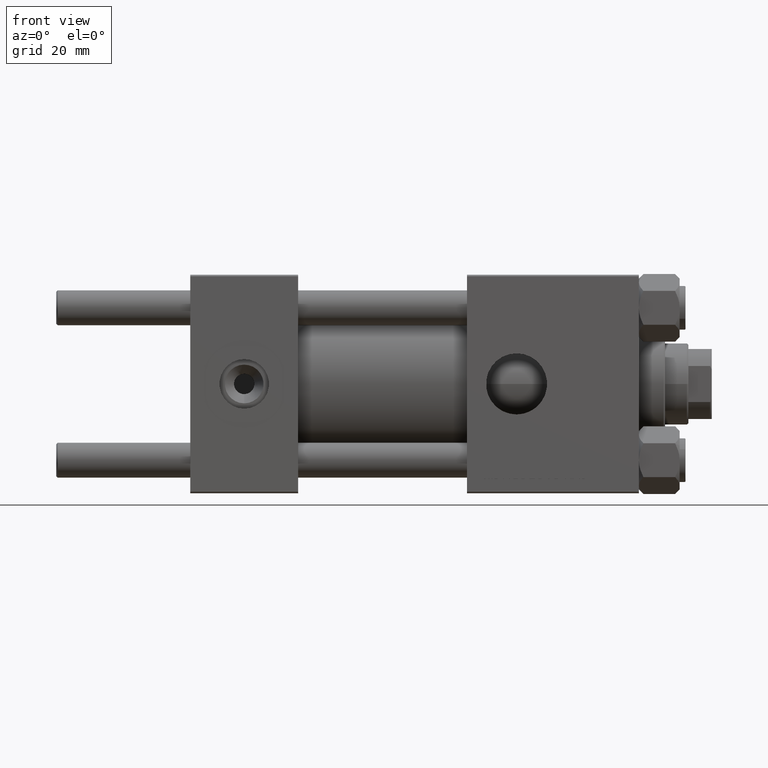
[diagram: clean part render]
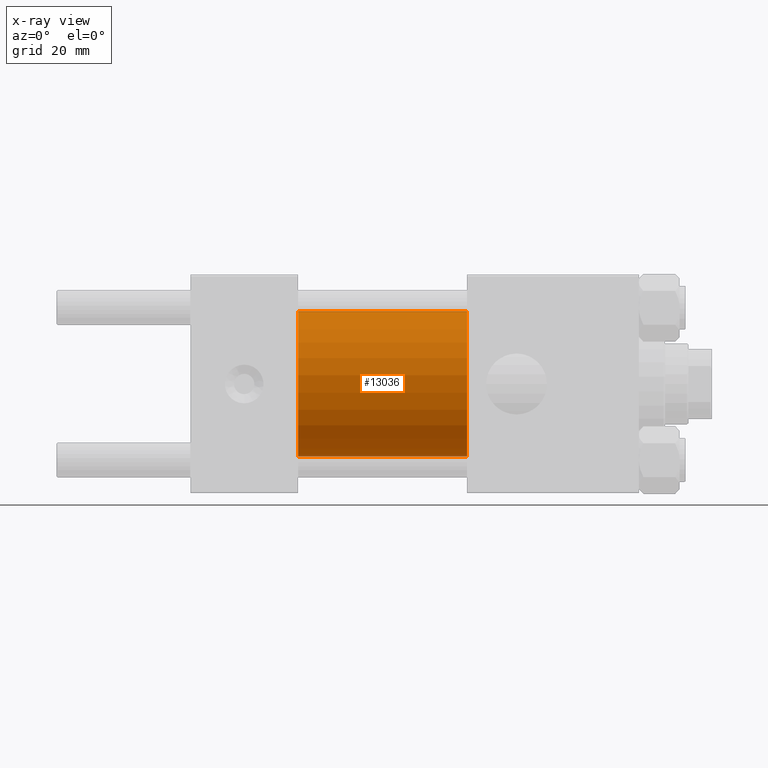
[diagram: x-ray — body ghosted, one internal face saturated and labeled with its STEP entity id]
A machine part, front view, then the same camera in x-ray: the body is ghosted and one INTERNAL B-rep face — a face not visible from any outside direction — is saturated and labeled: STEP entity #13036.
In plain terms, the highlighted cylindrical surface (partial cylindrical patch) has radius 25 mm, axis along (-1, -0, -0).
Its self-contained STEP definition (entity closure, byte-faithful):
#4200 = DIRECTION ( 'NONE',  ( 0.000000000000000000, 0.000000000000000000, 1.000000000000000000 ) ) ;
#9111 = ORIENTED_EDGE ( 'NONE', *, *, #16241, .T. ) ;
#12316 = CARTESIAN_POINT ( 'NONE',  ( 95.00000000000000000, 0.000000000000000000, 25.00000000000000000 ) ) ;
#12723 = DIRECTION ( 'NONE',  ( 0.000000000000000000, 0.000000000000000000, -1.000000000000000000 ) ) ;
#13036 = ADVANCED_FACE ( 'NONE', ( #40164 ), #21444, .F. ) ;
#13357 = DIRECTION ( 'NONE',  ( 1.000000000000000000, 0.000000000000000000, 0.000000000000000000 ) ) ;
#13746 = DIRECTION ( 'NONE',  ( 1.000000000000000000, 0.000000000000000000, 0.000000000000000000 ) ) ;
#16241 = EDGE_CURVE ( 'NONE', #38614, #47656, #29876, .T. ) ;
#17797 = EDGE_CURVE ( 'NONE', #30046, #34413, #41703, .T. ) ;
#19150 = CARTESIAN_POINT ( 'NONE',  ( 95.00000000000000000, 3.061616997868382254E-15, -25.00000000000000000 ) ) ;
#19306 = CARTESIAN_POINT ( 'NONE',  ( 37.00000000000000000, 0.000000000000000000, 25.00000000000000000 ) ) ;
#19965 = CARTESIAN_POINT ( 'NONE',  ( 95.00000000000000000, 0.000000000000000000, 0.000000000000000000 ) ) ;
#21368 = CARTESIAN_POINT ( 'NONE',  ( 37.00000000000000000, 0.000000000000000000, 0.000000000000000000 ) ) ;
#21444 = CYLINDRICAL_SURFACE ( 'NONE', #34779, 25.00000000000000000 ) ;
#25180 = EDGE_LOOP ( 'NONE', ( #9111, #46758, #28648, #28041 ) ) ;
#27806 = VECTOR ( 'NONE', #28220, 1000.000000000000000 ) ;
#28041 = ORIENTED_EDGE ( 'NONE', *, *, #30184, .F. ) ;
#28220 = DIRECTION ( 'NONE',  ( -1.000000000000000000, -0.000000000000000000, -0.000000000000000000 ) ) ;
#28648 = ORIENTED_EDGE ( 'NONE', *, *, #17797, .F. ) ;
#29876 = CIRCLE ( 'NONE', #49960, 25.00000000000000000 ) ;
#30046 = VERTEX_POINT ( 'NONE', #19306 ) ;
#30184 = EDGE_CURVE ( 'NONE', #38614, #30046, #41297, .T. ) ;
#31678 = EDGE_CURVE ( 'NONE', #47656, #34413, #41801, .T. ) ;
#32412 = CARTESIAN_POINT ( 'NONE',  ( 95.00000000000000000, 0.000000000000000000, 25.00000000000000000 ) ) ;
#32896 = VECTOR ( 'NONE', #42055, 1000.000000000000000 ) ;
#34075 = CARTESIAN_POINT ( 'NONE',  ( 95.00000000000000000, 0.000000000000000000, 0.000000000000000000 ) ) ;
#34413 = VERTEX_POINT ( 'NONE', #46665 ) ;
#34779 = AXIS2_PLACEMENT_3D ( 'NONE', #19965, #35966, #4200 ) ;
#35966 = DIRECTION ( 'NONE',  ( -1.000000000000000000, -0.000000000000000000, -0.000000000000000000 ) ) ;
#37084 = CARTESIAN_POINT ( 'NONE',  ( 95.00000000000000000, 3.061616997868382254E-15, -25.00000000000000000 ) ) ;
#37229 = DIRECTION ( 'NONE',  ( 0.000000000000000000, 0.000000000000000000, -1.000000000000000000 ) ) ;
#38614 = VERTEX_POINT ( 'NONE', #12316 ) ;
#40164 = FACE_OUTER_BOUND ( 'NONE', #25180, .T. ) ;
#40842 = AXIS2_PLACEMENT_3D ( 'NONE', #21368, #13746, #12723 ) ;
#41297 = LINE ( 'NONE', #32412, #27806 ) ;
#41703 = CIRCLE ( 'NONE', #40842, 25.00000000000000000 ) ;
#41801 = LINE ( 'NONE', #37084, #32896 ) ;
#42055 = DIRECTION ( 'NONE',  ( -1.000000000000000000, -0.000000000000000000, -0.000000000000000000 ) ) ;
#46665 = CARTESIAN_POINT ( 'NONE',  ( 37.00000000000000000, 3.061616997868382254E-15, -25.00000000000000000 ) ) ;
#46758 = ORIENTED_EDGE ( 'NONE', *, *, #31678, .T. ) ;
#47656 = VERTEX_POINT ( 'NONE', #19150 ) ;
#49960 = AXIS2_PLACEMENT_3D ( 'NONE', #34075, #13357, #37229 ) ;